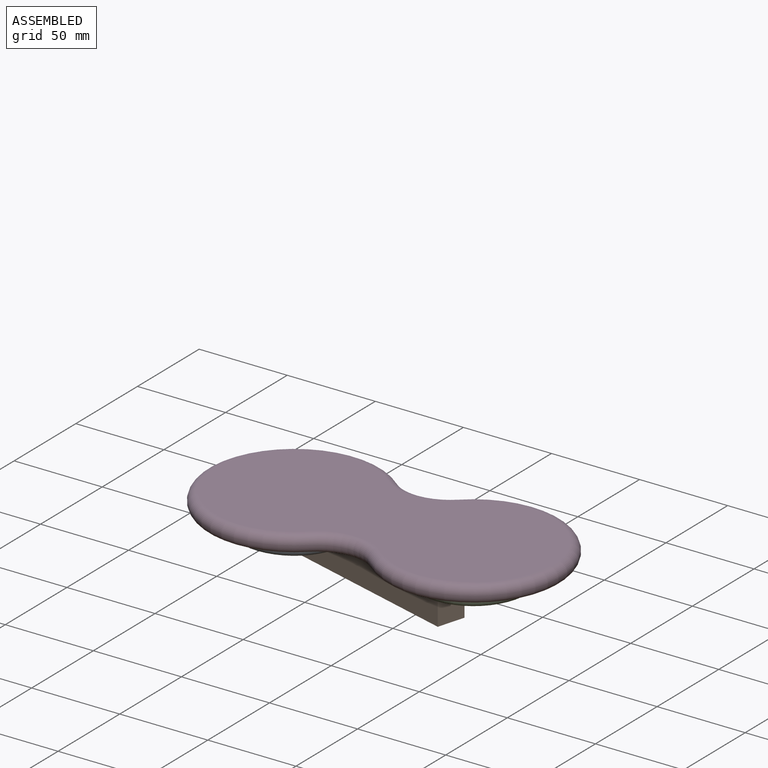
[diagram: assembled view]
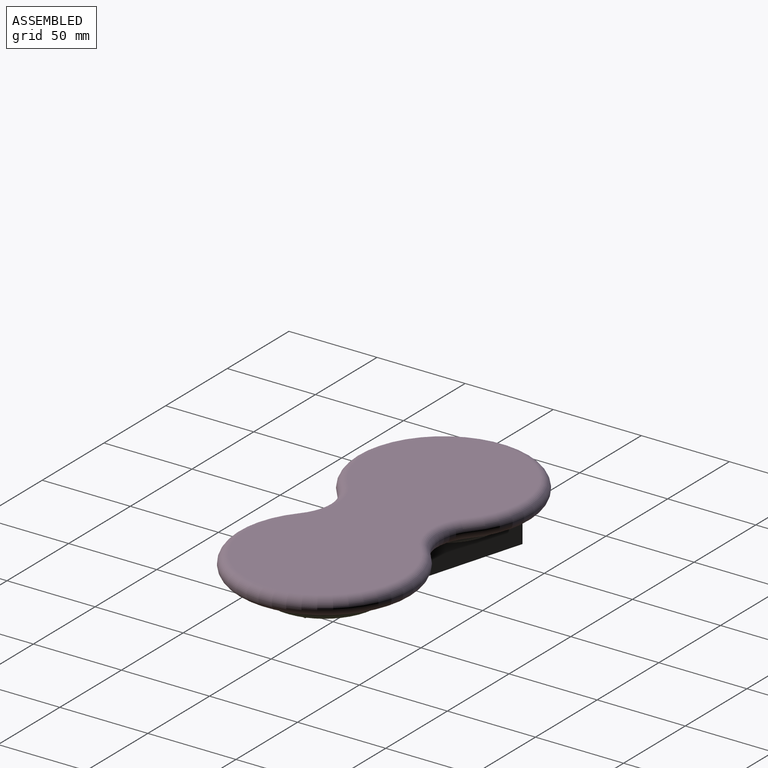
[diagram: assembled view, second angle]
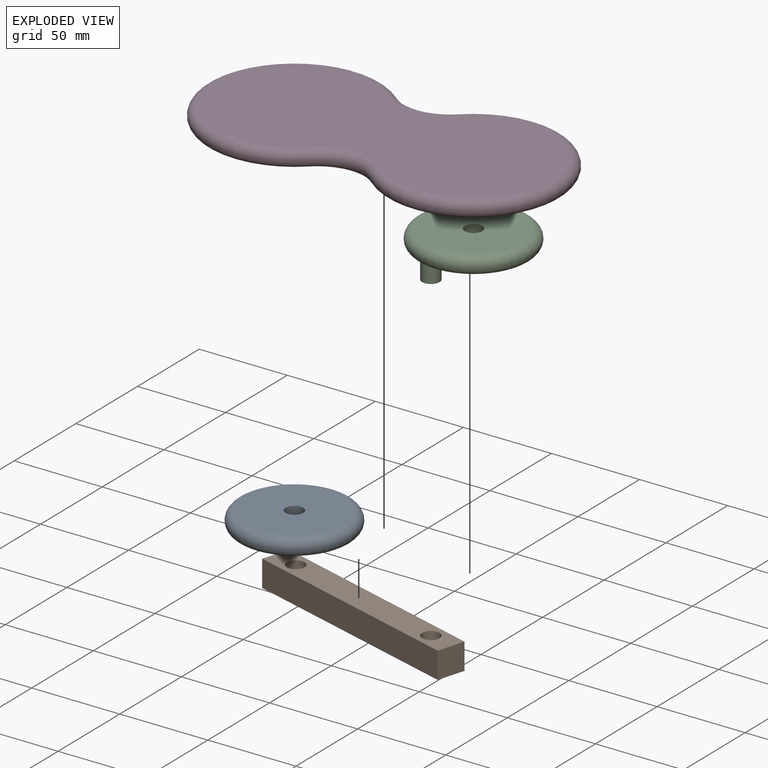
[diagram: exploded view]
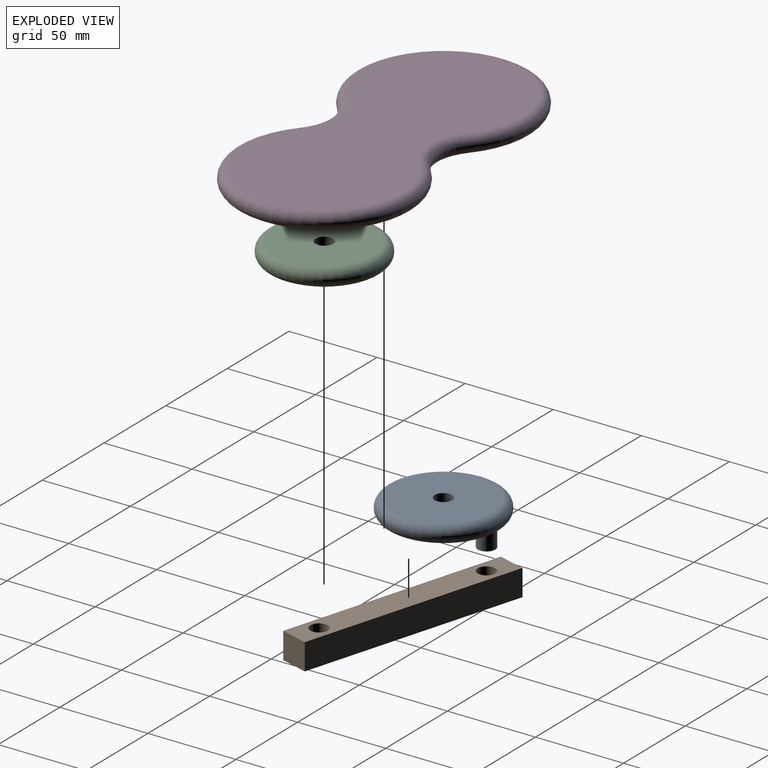
[diagram: exploded view, second angle]
ASSEMBLY  parts=4 mates=4
PART A: 6 faces, bbox 70.4x70.4x25 mm
  f0: cylinder r=5mm len=10mm, axis (0,0,1), area 314.2mm2, adj f1,f2
  f1: plane 55x55mm, normal (0,0,-1), area 2218.7mm2, adj f0,f3,f5
  f2: plane 55x55mm, normal (0,0,1), area 2297.3mm2, adj f0,f5
  f3: cylinder r=5mm len=15mm, axis (0,0,1), area 471.2mm2, adj f1,f4
  f4: plane 10x10mm, normal (0,0,-1), area 78.5mm2, adj f3
  f5: torus R=27.5mm, axis (0,0,-1), area 3028.3mm2, adj f1,f2
PART B: 10 faces, bbox 130.4x19.1x15 mm
  f0: plane 130.38x19.12mm, normal (0,0,-1), area 1923.4mm2, adj f1,f2,f3,f5,f6,f7,f8,f9
  f1: plane 15x8.24mm, normal (-1,-0.02,0), area 123.6mm2, adj f0,f2,f4,f7
  f2: cylinder r=5mm len=15mm, axis (0,0,1), area 7.2mm2, adj f0,f1,f3,f4
  f3: plane 15x7.28mm, normal (-1,-0.02,0), area 109.2mm2, adj f0,f2,f4,f6
  f4: plane 130.38x19.12mm, normal (0,0,1), area 1923.4mm2, adj f1,f2,f3,f5,f6,f7,f8,f9
  f5: cylinder r=5mm len=15mm, axis (0,0,1), area 471.2mm2, adj f0,f4
  f6: plane 129.99x15mm, normal (-0.02,1,0), area 1950.4mm2, adj f0,f3,f4,f8
  f7: plane 129.99x15mm, normal (0.02,-1,0), area 1950.4mm2, adj f0,f1,f4,f8
  f8: plane 16x15mm, normal (1,0.02,0), area 240mm2, adj f0,f4,f6,f7
  f9: cylinder r=5mm len=15mm, axis (0,0,1), area 471.2mm2, adj f0,f4
PART C: 6 faces, bbox 70.4x70.4x25 mm
  f0: cylinder r=5mm len=10mm, axis (0,0,1), area 314.2mm2, adj f1,f2
  f1: plane 55x55mm, normal (0,0,-1), area 2218.7mm2, adj f0,f3,f5
  f2: plane 55x55mm, normal (0,0,1), area 2297.3mm2, adj f0,f5
  f3: cylinder r=5mm len=15mm, axis (0,0,1), area 471.2mm2, adj f1,f4
  f4: plane 10x10mm, normal (0,0,-1), area 78.5mm2, adj f3
  f5: torus R=27.5mm, axis (0,0,-1), area 3028.3mm2, adj f1,f2
PART D: 10 faces, bbox 208.2x110.6x20 mm
  f0: plane 190x92.41mm, normal (0,0,1), area 13594.7mm2, adj f6,f7,f8,f9
  f1: plane 190x92.41mm, normal (0,0,-1), area 13437.6mm2, adj f2,f4,f6,f7,f8,f9
  f2: cylinder r=5mm len=10mm, axis (0,0,1), area 314.2mm2, adj f1,f3
  f3: plane 10x10mm, normal (0,0,-1), area 78.5mm2, adj f2
  f4: cylinder r=5mm len=10mm, axis (0,0,1), area 314.2mm2, adj f1,f5
  f5: plane 10x10mm, normal (0,0,-1), area 78.5mm2, adj f4
  f6: torus R=45mm, axis (0,0,1), area 3482.7mm2, adj f0,f1,f7,f8
  f7: torus R=30mm, axis (0,0,1), area 615mm2, adj f0,f1,f6,f9
  f8: torus R=30mm, axis (0,0,1), area 615mm2, adj f0,f1,f6,f9
  f9: torus R=45mm, axis (0,0,1), area 3482.7mm2, adj f0,f1,f7,f8
PLACE A rot(axis=(0,0,1),123.2deg) t=(62.27,-54.48,-5.2)mm
PLACE B rot(axis=(0,0,-1),17.5deg) t=(30.35,-58.71,-5.2)mm
PLACE C rot(axis=(0,0,-1),137.9deg) t=(215.17,7.28,-5.2)mm
PLACE D t=(64.34,-79.66,-5.2)mm fixed
MATE revolute A.f0 <-> D.f4  axis (0,0,1) through (56.49,-67.63,-5.2)mm
MATE revolute C.f0 <-> D.f2  axis (0,0,1) through (156.49,-65.22,-5.2)mm
MATE revolute B.f9 <-> C.f3  axis (0,0,1) through (141.65,-78.63,-30.2)mm
MATE revolute B.f5 <-> A.f3  axis (0,0,1) through (45.55,-50.89,-30.2)mm
